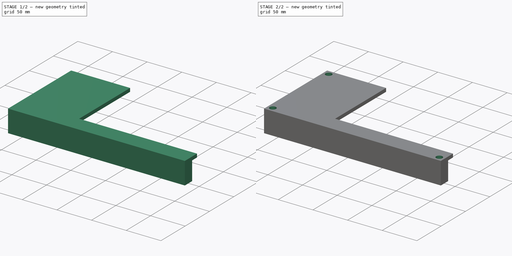
[diagram: build sequence overview — one tinted view per stage of 2, left to right]
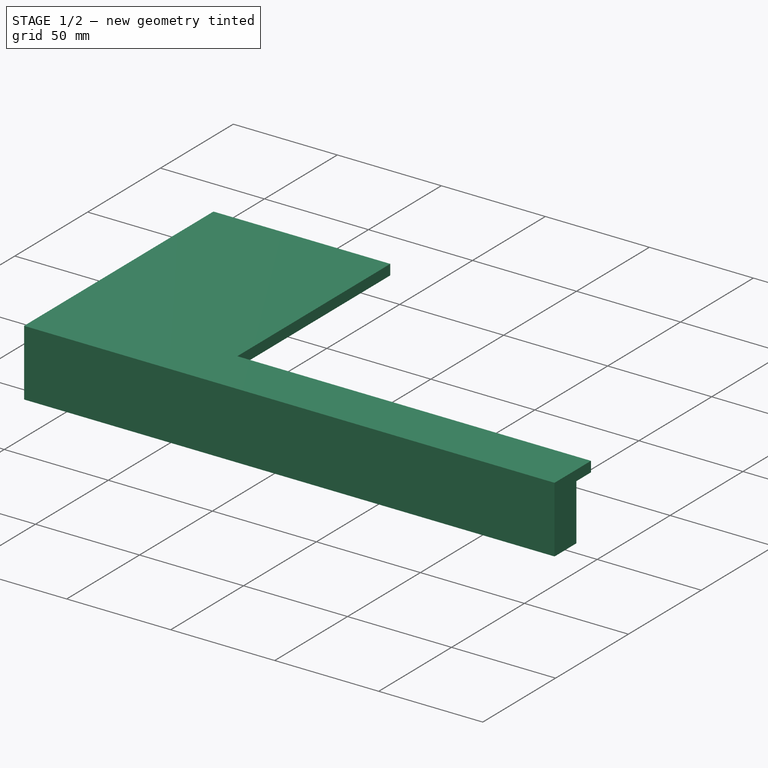
[diagram: stage 1 of 2 — iso view after this stage's code; geometry added in this stage tinted green]
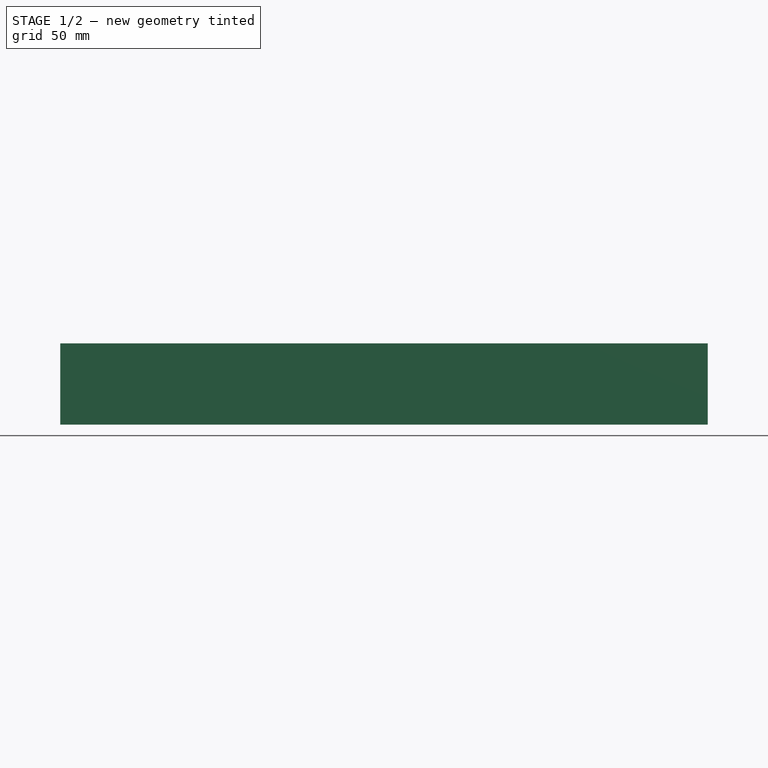
[diagram: stage 1 of 2 — front view after this stage's code; geometry added in this stage tinted green]
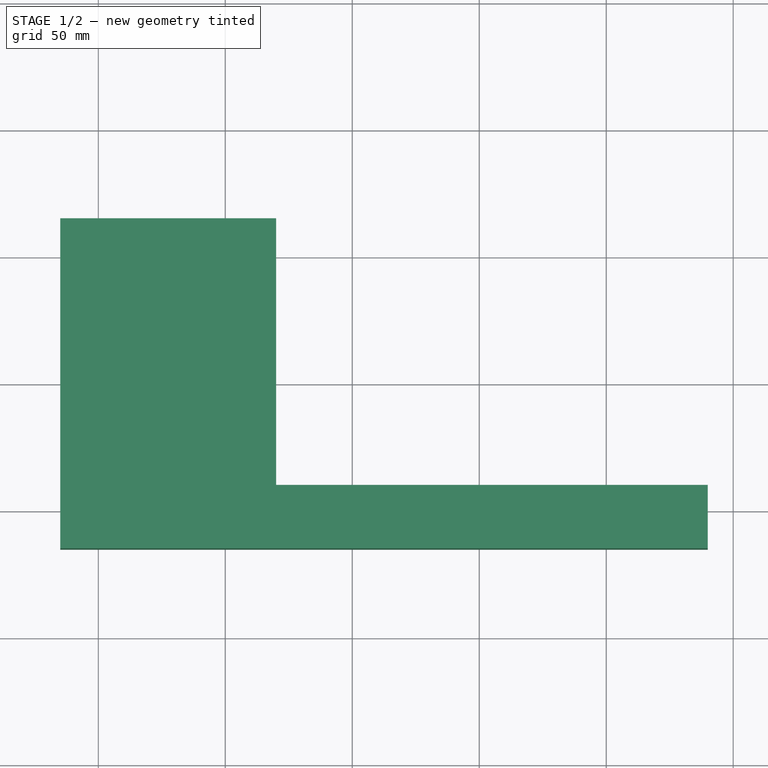
[diagram: stage 1 of 2 — top view after this stage's code; geometry added in this stage tinted green]
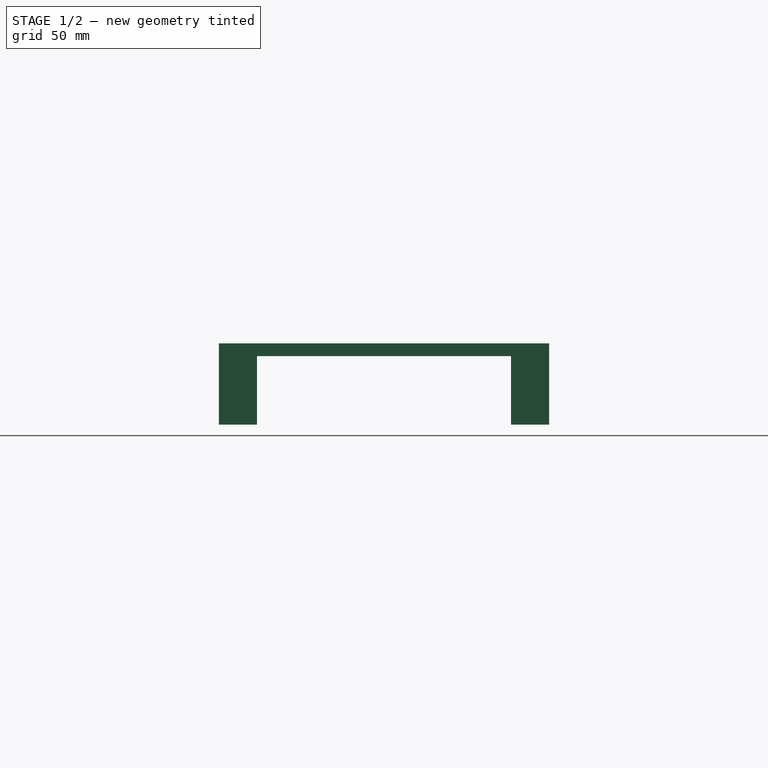
[diagram: stage 1 of 2 — right view after this stage's code; geometry added in this stage tinted green]
FCSTD DOCUMENT  (FreeCAD 0.21R33771 (Git))
Label: Laptop_Wallmount
License: All rights reserved
LicenseURL: https://en.wikipedia.org/wiki/All_rights_reserved
objects: Sketcher::SketchObject×3, PartDesign::Pad×2, PartDesign::Hole×1, PartDesign::Body×1
note: 10 computed .brp shape members not serialized (recipe doc carries the construction recipe); baked Part::Feature solids carry a one-line shape summary decoded from their .brp

FEATURE [Sketcher::SketchObject] Sketch  label="FaceSketch"
  FullyConstrained = true
  MapMode = 5
  Support = -> [XY_Plane]
  sketch-geometry (19):
    g0: LineSegment StartX=0 StartY=0 StartZ=0 EndX=-15 EndY=0 EndZ=0
    g1: LineSegment StartX=0 StartY=0 StartZ=0 EndX=0 EndY=60 EndZ=0
    g2: LineSegment StartX=0 StartY=0 StartZ=0 EndX=0 EndY=-15 EndZ=0
    g3: LineSegment StartX=-15 StartY=0 StartZ=0 EndX=-15 EndY=-15 EndZ=0
    g4: LineSegment StartX=0 StartY=-15 StartZ=0 EndX=-15 EndY=-15 EndZ=0
    g5: LineSegment StartX=0 StartY=60 StartZ=0 EndX=70 EndY=60 EndZ=0
    g6: LineSegment StartX=0 StartY=-15 StartZ=0 EndX=240 EndY=-15 EndZ=0
    g7: LineSegment StartX=70 StartY=60 StartZ=0 EndX=70 EndY=10 EndZ=0
    g8: LineSegment StartX=240 StartY=-15 StartZ=0 EndX=240 EndY=0 EndZ=0
    g9: LineSegment StartX=240 StartY=0 StartZ=0 EndX=240 EndY=10 EndZ=0
    g10: LineSegment StartX=70 StartY=10 StartZ=0 EndX=240 EndY=10 EndZ=0
    g11: LineSegment StartX=-15 StartY=0 StartZ=0 EndX=-15 EndY=100 EndZ=0
    g12: LineSegment StartX=-15 StartY=100 StartZ=0 EndX=70 EndY=100 EndZ=0
    g13: LineSegment StartX=-15 StartY=100 StartZ=0 EndX=-15 EndY=115 EndZ=0
    g14: LineSegment StartX=-15 StartY=115 StartZ=0 EndX=0 EndY=115 EndZ=0
    g15: LineSegment StartX=0 StartY=115 StartZ=0 EndX=70 EndY=115 EndZ=0
    g16: LineSegment StartX=70 StartY=100 StartZ=0 EndX=70 EndY=115 EndZ=0
    g17: LineSegment StartX=70 StartY=100 StartZ=0 EndX=70 EndY=60 EndZ=0
    g18: GeomPoint X=70 Y=107.5 Z=0
  constraints (53):
    c: Coincident(g0,g-1)
    c: PointOnObject(g0,g-1)
    c: Coincident(g1,g0)
    c: PointOnObject(g1,g-2)
    c: DistanceY(g0,g1) = 60
    c: Coincident(g2,g0)
    c: PointOnObject(g2,g-2)
    c: Coincident(g3,g0)
    c: Vertical(g3)
    c: Coincident(g4,g2)
    c: Coincident(g4,g3)
    c: Horizontal(g4)
    c: Coincident(g5,g1)
    c: Horizontal(g5)
    c: DistanceX(g5,g5) = 70
    c: Coincident(g6,g4)
    c: Horizontal(g6)
    c: Coincident(g7,g5)
    c: Vertical(g7)
    c: DistanceX(g3,g4) = 15  'wallThickness'
    c: Coincident(g8,g6)
    c: PointOnObject(g8,g-1)
    c: Vertical(g8)
    c: Coincident(g9,g8)
    c: Vertical(g9)
    c: DistanceY(g8,g9) = 10  'retainingLid'
    c: Coincident(g10,g7)
    c: Horizontal(g10)
    c: Coincident(g10,g9)
    c: Coincident(g11,g3)
    c: Vertical(g11)
    c: Coincident(g12,g11)
    c: Horizontal(g12)
    c: Coincident(g13,g11)
    c: Vertical(g13)
    c: Equal(g4,g3)
    c: Equal(g3,g13)
    c: Coincident(g14,g13)
    c: PointOnObject(g14,g-2)
    c: Horizontal(g14)
    c: Horizontal(g15)
    c: Vertical(g16)
    c: Coincident(g17,g7)
    c: Coincident(g15,g14)
    c: Coincident(g12,g16)
    c: Coincident(g16,g17)
    c: Coincident(g15,g16)
    c: Symmetric(g16,g15,g18)
    c: DistanceX(g3,g6) = 255  'maxLength'
    c: DistanceY(g3,g13) = 130
    c: DistanceY(g3,g11) = 100
    c: DistanceX(g14,g15) = 70
    c: DistanceX(g4,g6) = 240
FEATURE [PartDesign::Pad] Pad  label="FacePad"
  Direction = (0,0,1)
  Length = 5
  Length2 = 10
  Profile = -> Sketch
  ReferenceAxis = -> Sketch [N_Axis]
  Type = 0
FEATURE [Sketcher::SketchObject] Sketch001  label="MountSketch"
  ExternalGeometry = -> [Pad]
  FullyConstrained = true
  MapMode = 5
  Placement = pos=(0,0,0) rot=(1,0,0;3.14159rad)
  Support = -> [Pad]
  sketch-geometry (8):
    g0: LineSegment StartX=-15 StartY=0 StartZ=0 EndX=240 EndY=0 EndZ=0
    g1: LineSegment StartX=240 StartY=0 StartZ=0 EndX=240 EndY=15 EndZ=0
    g2: LineSegment StartX=240 StartY=15 StartZ=0 EndX=-15 EndY=15 EndZ=0
    g3: LineSegment StartX=-15 StartY=15 StartZ=0 EndX=-15 EndY=0 EndZ=0
    g4: LineSegment StartX=-15 StartY=-115 StartZ=0 EndX=0 EndY=-115 EndZ=0
    g5: LineSegment StartX=0 StartY=-115 StartZ=0 EndX=0 EndY=-100 EndZ=0
    g6: LineSegment StartX=0 StartY=-100 StartZ=0 EndX=-15 EndY=-100 EndZ=0
    g7: LineSegment StartX=-15 StartY=-100 StartZ=0 EndX=-15 EndY=-115 EndZ=0
  constraints (21):
    c: Coincident(g0,g1)
    c: Coincident(g1,g2)
    c: Coincident(g2,g3)
    c: Coincident(g3,g0)
    c: Horizontal(g0)
    c: Horizontal(g2)
    c: Vertical(g1)
    c: Vertical(g3)
    c: Coincident(g0,g-3)
    c: Coincident(g4,g5)
    c: Coincident(g5,g6)
    c: Coincident(g6,g7)
    c: Coincident(g7,g4)
    c: Horizontal(g4)
    c: Coincident(g4,g-5)
    c: Vertical(g5,g-1)
    c: Equal(g7,g4)
    c: Coincident(g1,g-4)
    c: Vertical(g5)
    c: Vertical(g7)
    c: Horizontal(g6)
FEATURE [PartDesign::Pad] Pad001  label="MountPad"
  BaseFeature = -> Pad
  Direction = (0,0,-1)
  Length = 27
  Length2 = 10
  Profile = -> Sketch001
  ReferenceAxis = -> Sketch001 [N_Axis]
  Type = 0
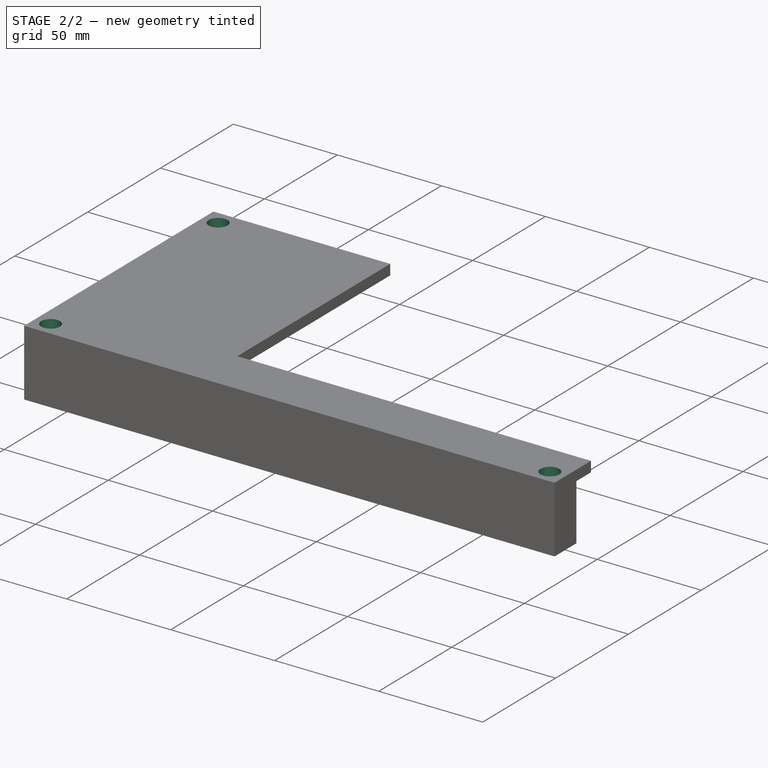
[diagram: stage 2 of 2 — iso view after this stage's code; geometry added in this stage tinted green]
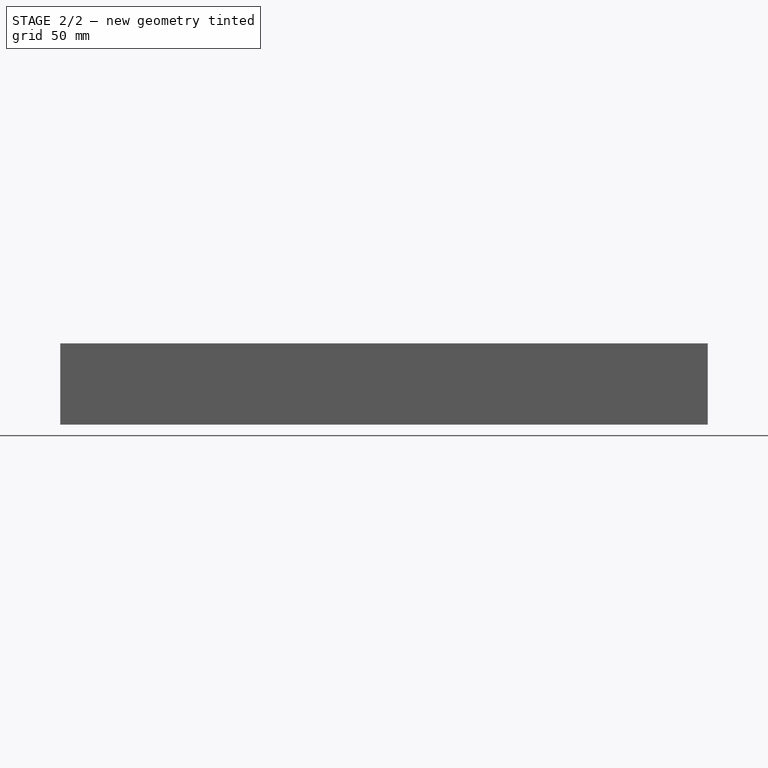
[diagram: stage 2 of 2 — front view after this stage's code; geometry added in this stage tinted green]
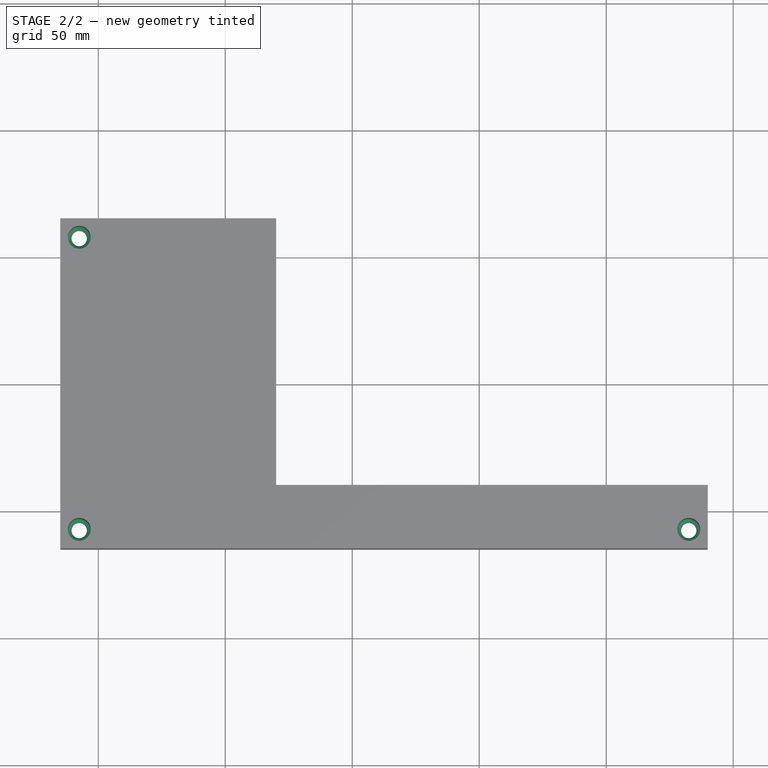
[diagram: stage 2 of 2 — top view after this stage's code; geometry added in this stage tinted green]
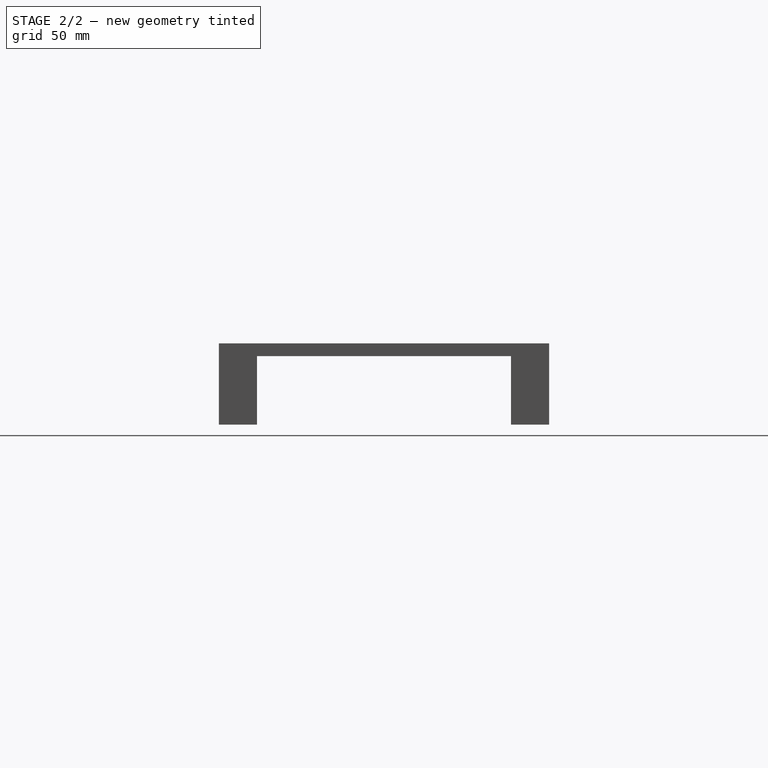
[diagram: stage 2 of 2 — right view after this stage's code; geometry added in this stage tinted green]
FEATURE [Sketcher::SketchObject] Sketch002  label="ScrewSketch"
  ExternalGeometry = -> [Pad001]
  FullyConstrained = true
  MapMode = 5
  Placement = pos=(0,0,5) rot=(0,0,1;0rad)
  Support = -> [Pad001]
  sketch-geometry (4):
    g0: Circle CenterX=-7.5 CenterY=107.5 CenterZ=0 NormalX=0 NormalY=0 NormalZ=1 AngleXU=0 Radius=3
    g1: LineSegment StartX=240 StartY=-15 StartZ=0 EndX=225 EndY=-15 EndZ=0
    g2: Circle CenterX=232.5 CenterY=-7.5 CenterZ=0 NormalX=0 NormalY=0 NormalZ=1 AngleXU=0 Radius=3
    g3: Circle CenterX=-7.5 CenterY=-7.5 CenterZ=0 NormalX=0 NormalY=0 NormalZ=1 AngleXU=0 Radius=3
  constraints (9):
    c: Symmetric(g-4,g-3,g0)
    c: Coincident(g1,g-5)
    c: Horizontal(g1)
    c: Equal(g1,g-5)
    c: Symmetric(g1,g-5,g2)
    c: Symmetric(g-6,g-1,g3)
    c: Equal(g2,g3)
    c: Equal(g3,g0)
    c: Diameter(g0) = 6
FEATURE [PartDesign::Hole] Hole
  BaseFeature = -> Pad001
  CustomThreadClearance = 0
  Depth = 831.458
  DepthType = 1
  Diameter = 6
  DrillForDepth = false
  DrillPoint = 1
  DrillPointAngle = 118
  HoleCutCountersinkAngle = 90
  HoleCutCustomValues = false
  HoleCutDepth = 27.5
  HoleCutDiameter = 9
  HoleCutType = 3
  ModelThread = false
  Profile = -> Sketch002
  Tapered = false
  TaperedAngle = 90
  ThreadClass = 0
  ThreadDepth = 831.458
  ThreadDepthType = 0
  ThreadDirection = 0
  ThreadFit = 0
  ThreadSize = 0
  ThreadType = 0
  Threaded = false
  UseCustomThreadClearance = false
FEATURE [PartDesign::Body] Body  label="Körper"
  Group = -> [Sketch,Pad,Sketch001,Pad001,Sketch002,Hole]
  Origin = -> Origin
  Tip = -> Hole
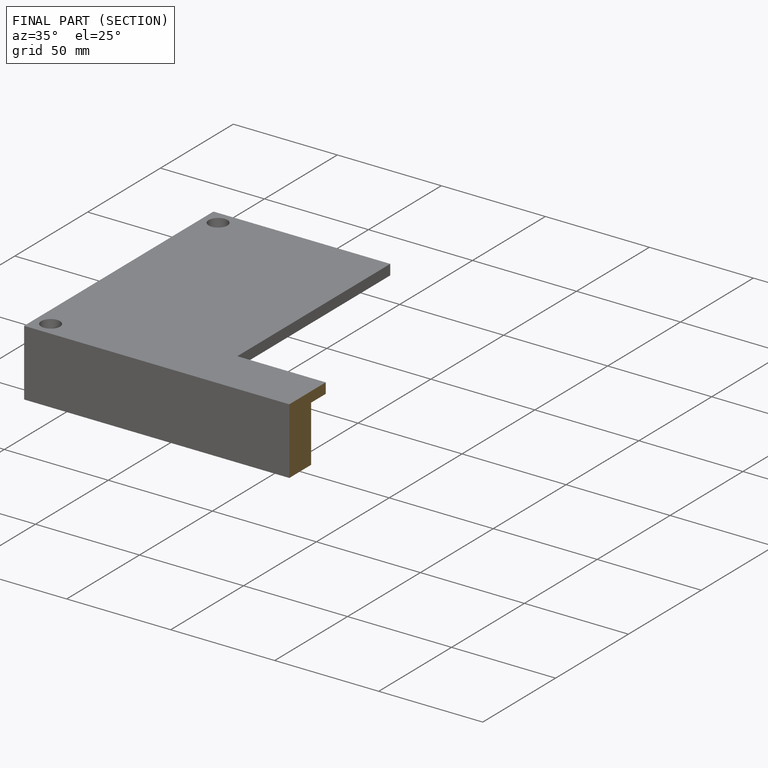
[diagram: finished part — half-section view (interior)]
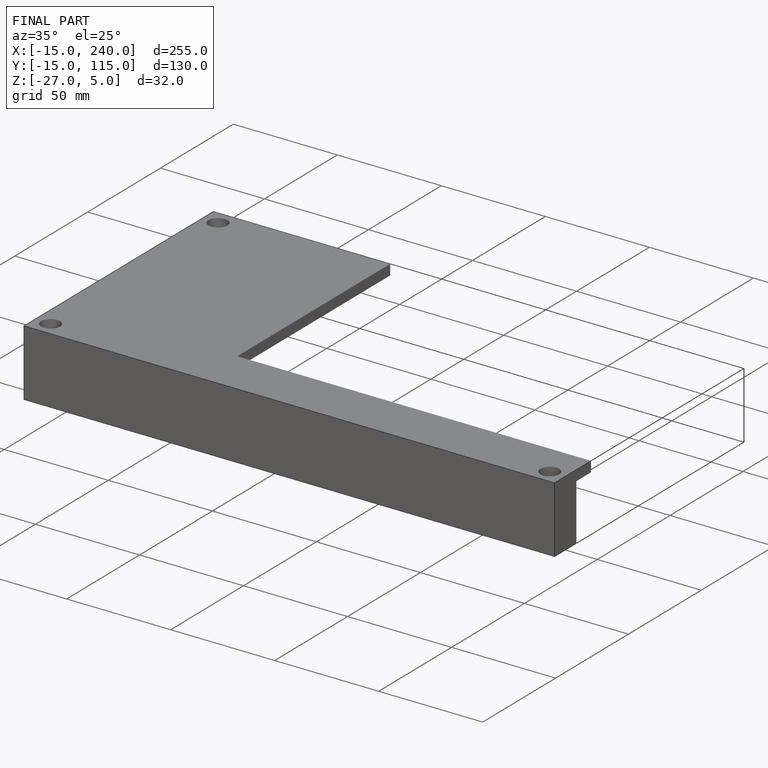
[diagram: finished part — iso view with bounding-box wireframe]
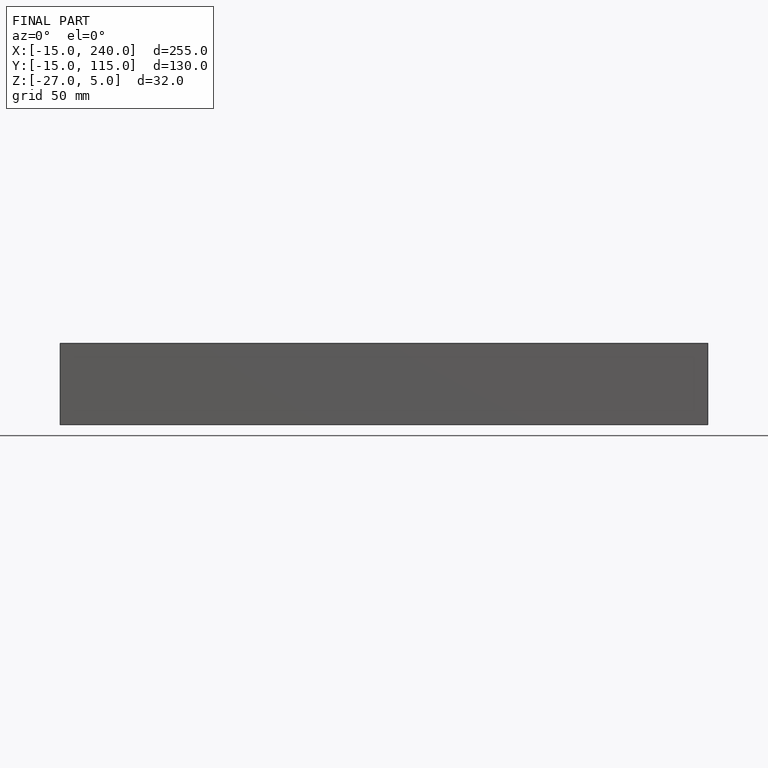
[diagram: finished part — front view with bounding-box wireframe]
